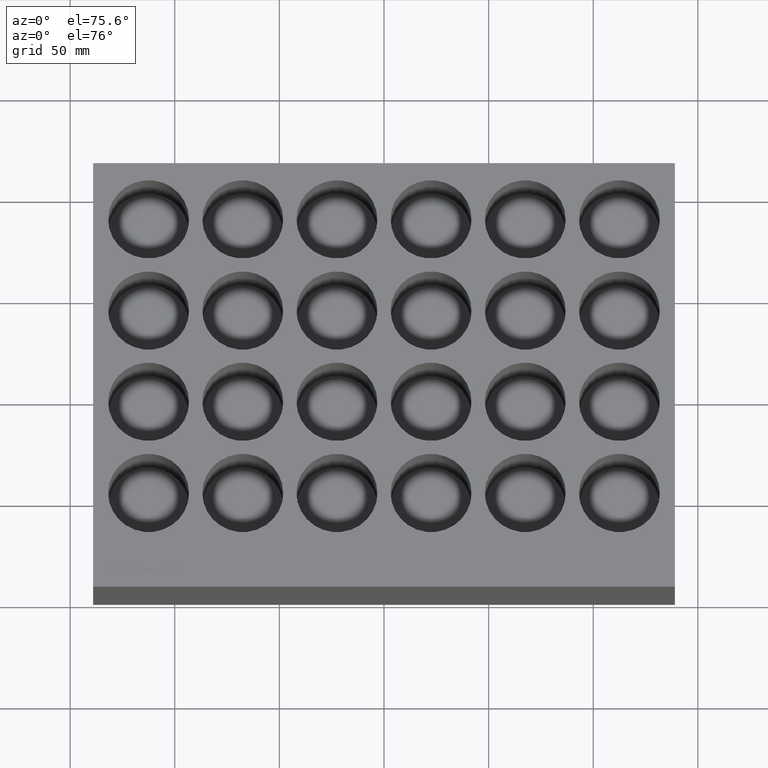
[diagram: clean part render]
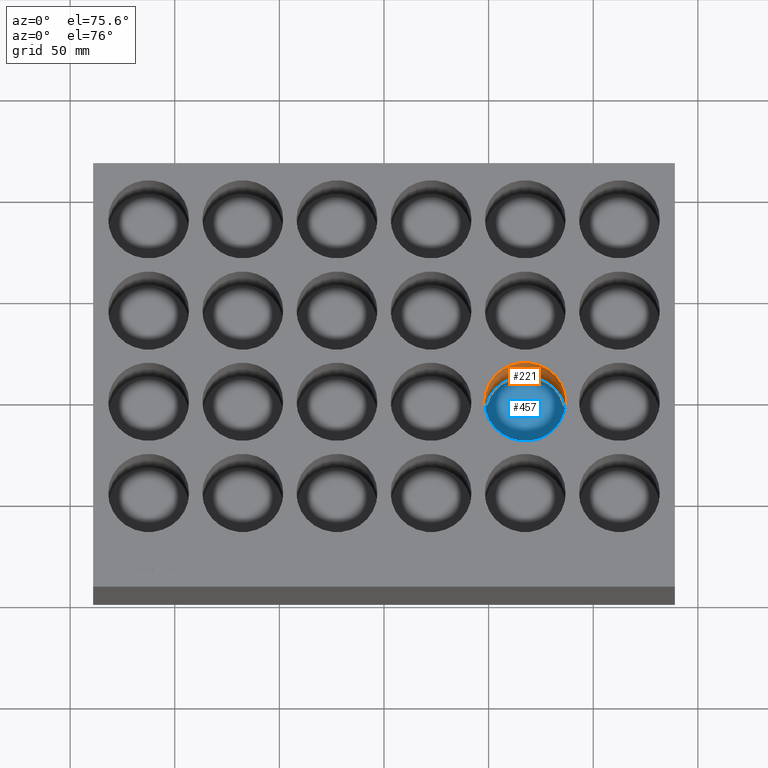
[diagram: same view with the hole feature highlighted: cylindrical wall and planar end face, labeled with their STEP entity ids]
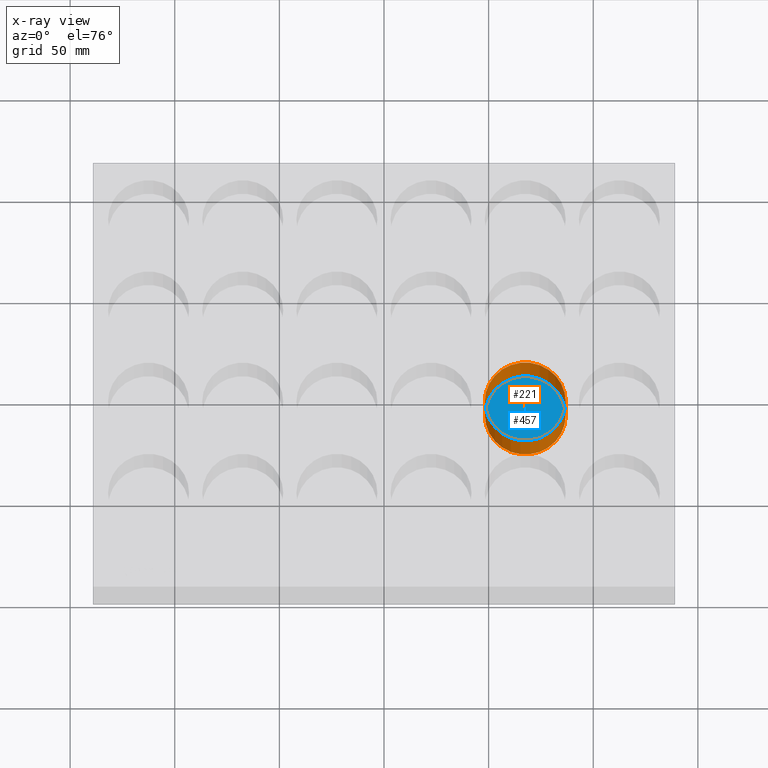
[diagram: x-ray of the same camera — body ghosted, the hole faces saturated]
A machine part, auxiliary view. The highlighted faces form one hole feature of diameter 38.7 mm: the cylindrical wall (entity #221, orange) and its adjacent planar end face (entity #457, blue) — they share a circular edge in the B-rep.
The next image is the same camera in x-ray (body ghosted, the hole faces saturated) — the bore reads through the body.
Wall:
#221 = ADVANCED_FACE( '', ( #600, #601 ), #602, .F. );
#600 = FACE_OUTER_BOUND( '', #1201, .T. );
#601 = FACE_OUTER_BOUND( '', #1202, .T. );
#602 = CYLINDRICAL_SURFACE( '', #1203, 19.3500000000000 );
#1201 = EDGE_LOOP( '', ( #1924 ) );
#1202 = EDGE_LOOP( '', ( #1925 ) );
#1203 = AXIS2_PLACEMENT_3D( '', #1926, #1927, #1928 );
#1924 = ORIENTED_EDGE( '', *, *, #3778, .T. );
#1925 = ORIENTED_EDGE( '', *, *, #3779, .F. );
#1926 = CARTESIAN_POINT( '', ( 67.5000000000000, 91.2000000000000, -26.0000000000000 ) );
#1927 = DIRECTION( '', ( -0.000000000000000, -0.000000000000000, -1.00000000000000 ) );
#1928 = DIRECTION( '', ( 1.00000000000000, 0.000000000000000, 0.000000000000000 ) );
#3778 = EDGE_CURVE( '', #4363, #4363, #4364, .T. );
#3779 = EDGE_CURVE( '', #4365, #4365, #4366, .T. );
#4363 = VERTEX_POINT( '', #5407 );
#4364 = CIRCLE( '', #5408, 19.3500000000000 );
#4365 = VERTEX_POINT( '', #5409 );
#4366 = CIRCLE( '', #5410, 19.3500000000000 );
#5407 = CARTESIAN_POINT( '', ( 86.8500000000000, 91.2000000000000, -26.0000000000000 ) );
#5408 = AXIS2_PLACEMENT_3D( '', #7250, #7251, #7252 );
#5409 = CARTESIAN_POINT( '', ( 86.8500000000000, 91.2000000000000, 0.000000000000000 ) );
#5410 = AXIS2_PLACEMENT_3D( '', #7253, #7254, #7255 );
#7250 = CARTESIAN_POINT( '', ( 67.5000000000000, 91.2000000000000, -26.0000000000000 ) );
#7251 = DIRECTION( '', ( 0.000000000000000, 0.000000000000000, -1.00000000000000 ) );
#7252 = DIRECTION( '', ( 1.00000000000000, 0.000000000000000, 0.000000000000000 ) );
#7253 = CARTESIAN_POINT( '', ( 67.5000000000000, 91.2000000000000, 0.000000000000000 ) );
#7254 = DIRECTION( '', ( 0.000000000000000, 0.000000000000000, -1.00000000000000 ) );
#7255 = DIRECTION( '', ( 1.00000000000000, 0.000000000000000, 0.000000000000000 ) );
End face:
#457 = ADVANCED_FACE( '', ( #978 ), #979, .F. );
#978 = FACE_OUTER_BOUND( '', #1595, .T. );
#979 = PLANE( '', #1596 );
#1595 = EDGE_LOOP( '', ( #3080 ) );
#1596 = AXIS2_PLACEMENT_3D( '', #3081, #3082, #3083 );
#3080 = ORIENTED_EDGE( '', *, *, #3778, .F. );
#3081 = CARTESIAN_POINT( '', ( 67.5000000000000, 91.2000000000000, -26.0000000000000 ) );
#3082 = DIRECTION( '', ( 0.000000000000000, 0.000000000000000, -1.00000000000000 ) );
#3083 = DIRECTION( '', ( -1.00000000000000, 0.000000000000000, 0.000000000000000 ) );
#3778 = EDGE_CURVE( '', #4363, #4363, #4364, .T. );
#4363 = VERTEX_POINT( '', #5407 );
#4364 = CIRCLE( '', #5408, 19.3500000000000 );
#5407 = CARTESIAN_POINT( '', ( 86.8500000000000, 91.2000000000000, -26.0000000000000 ) );
#5408 = AXIS2_PLACEMENT_3D( '', #7250, #7251, #7252 );
#7250 = CARTESIAN_POINT( '', ( 67.5000000000000, 91.2000000000000, -26.0000000000000 ) );
#7251 = DIRECTION( '', ( 0.000000000000000, 0.000000000000000, -1.00000000000000 ) );
#7252 = DIRECTION( '', ( 1.00000000000000, 0.000000000000000, 0.000000000000000 ) );